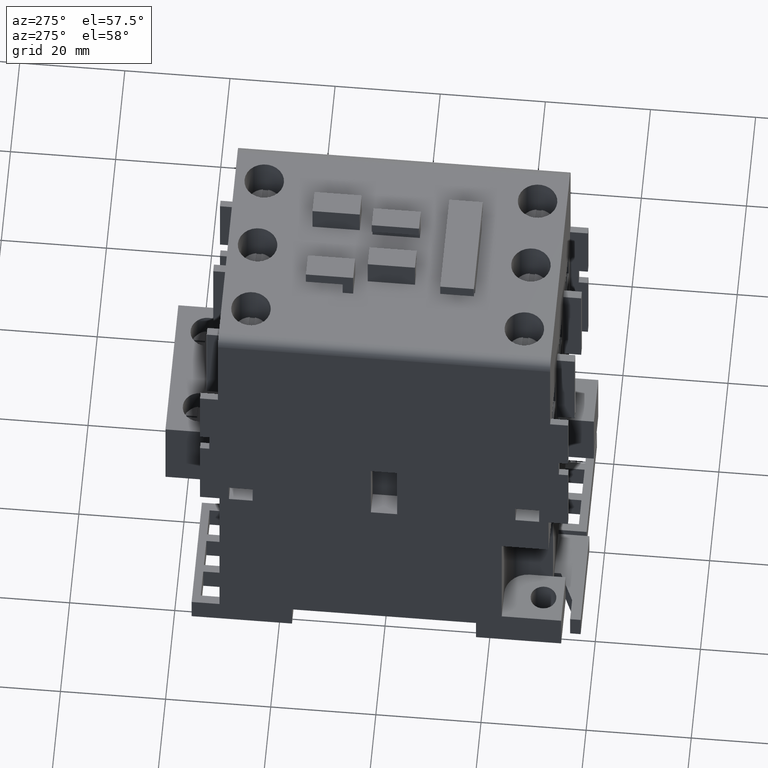
[diagram: clean part render]
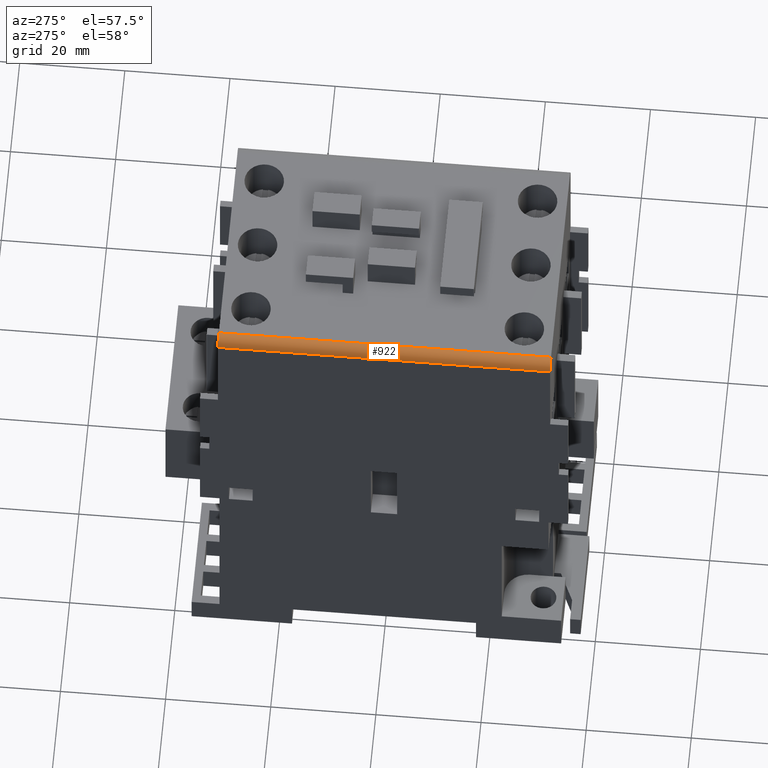
[diagram: same view with one face highlighted and labeled with its STEP entity id]
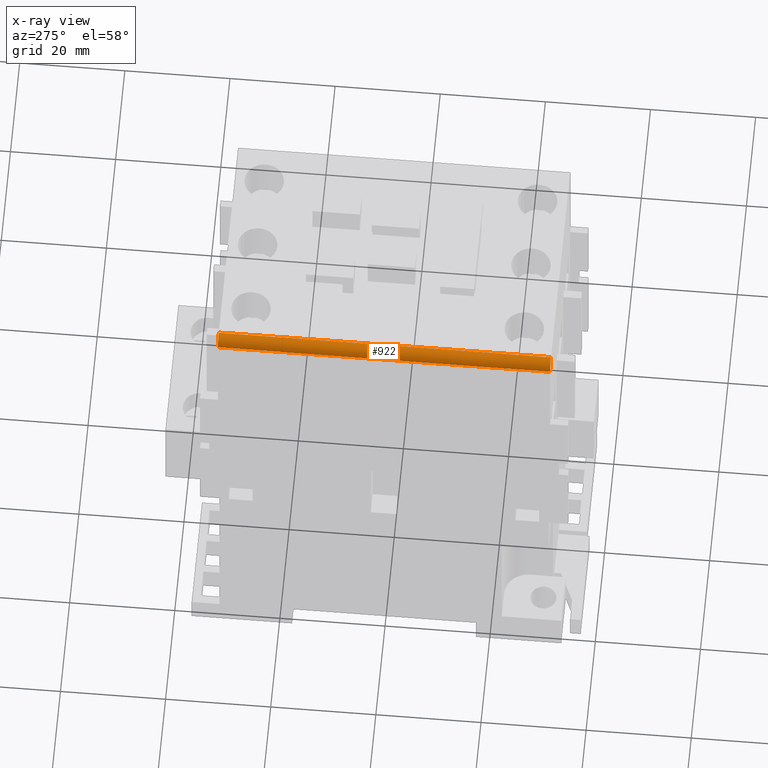
[diagram: x-ray of the same camera — body ghosted, the highlighted face saturated]
A machine part, auxiliary view. The second image highlights one B-rep face of the part: STEP entity #922.
The next image is the same camera in x-ray: the body ghosted, the highlighted face saturated — about 0% of this face is hidden behind the body in this view.
In plain terms, the highlighted cylindrical surface (edge-blend (fillet) strip) has radius 2 mm, axis along (0, 1, 0).
Its self-contained STEP definition (entity closure, byte-faithful):
#119=CYLINDRICAL_SURFACE('',#7979,2.);
#133=CIRCLE('',#7566,2.);
#152=CIRCLE('',#7603,2.);
#530=FACE_OUTER_BOUND('',#1883,.T.);
#922=ADVANCED_FACE('',(#530),#119,.T.);
#1883=EDGE_LOOP('',(#3797,#3798,#3799,#3800));
#3797=ORIENTED_EDGE('',*,*,#5080,.F.);
#3798=ORIENTED_EDGE('',*,*,#4689,.F.);
#3799=ORIENTED_EDGE('',*,*,#4990,.F.);
#3800=ORIENTED_EDGE('',*,*,#4844,.F.);
#3997=VERTEX_POINT('',#9985);
#3998=VERTEX_POINT('',#9987);
#4134=VERTEX_POINT('',#10295);
#4136=VERTEX_POINT('',#10298);
#4689=EDGE_CURVE('',#3997,#3998,#5712,.T.);
#4844=EDGE_CURVE('',#4134,#4136,#5864,.T.);
#4990=EDGE_CURVE('',#4136,#3997,#133,.T.);
#5080=EDGE_CURVE('',#3998,#4134,#152,.T.);
#5712=LINE('',#9986,#6631);
#5864=LINE('',#10297,#6783);
#6631=VECTOR('',#8049,1.);
#6783=VECTOR('',#8243,1.);
#7566=AXIS2_PLACEMENT_3D('',#10572,#8416,#8417);
#7603=AXIS2_PLACEMENT_3D('',#10754,#8561,#8562);
#7979=AXIS2_PLACEMENT_3D('',#11920,#9792,#9793);
#8049=DIRECTION('',(0.,1.,0.));
#8243=DIRECTION('',(0.,-1.,0.));
#8416=DIRECTION('',(0.,-1.,0.));
#8417=DIRECTION('',(0.,0.,-1.));
#8561=DIRECTION('',(0.,1.,0.));
#8562=DIRECTION('',(0.,0.,1.));
#9792=DIRECTION('',(0.,1.,0.));
#9793=DIRECTION('',(0.,0.,1.));
#9985=CARTESIAN_POINT('',(-22.3,-31.6,90.5));
#9986=CARTESIAN_POINT('',(-22.3,31.6,90.5));
#9987=CARTESIAN_POINT('',(-22.3,31.6,90.5));
#10295=CARTESIAN_POINT('',(-20.3,31.6,92.5));
#10297=CARTESIAN_POINT('',(-20.3,-31.6,92.5));
#10298=CARTESIAN_POINT('',(-20.3,-31.6,92.5));
#10572=CARTESIAN_POINT('',(-20.3,-31.6,90.5));
#10754=CARTESIAN_POINT('',(-20.3,31.6,90.5));
#11920=CARTESIAN_POINT('',(-20.3,31.6,90.5));